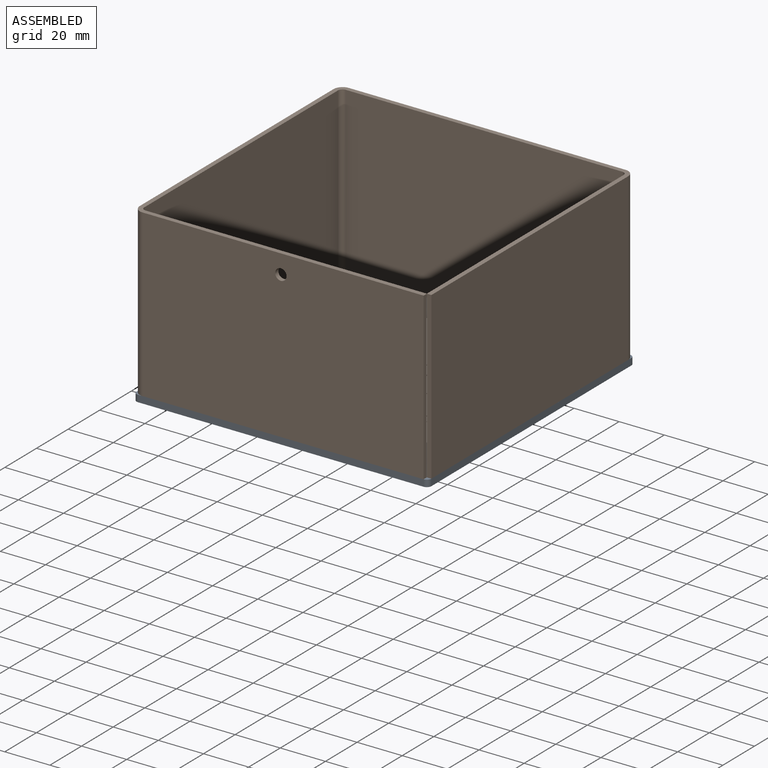
[diagram: assembled view]
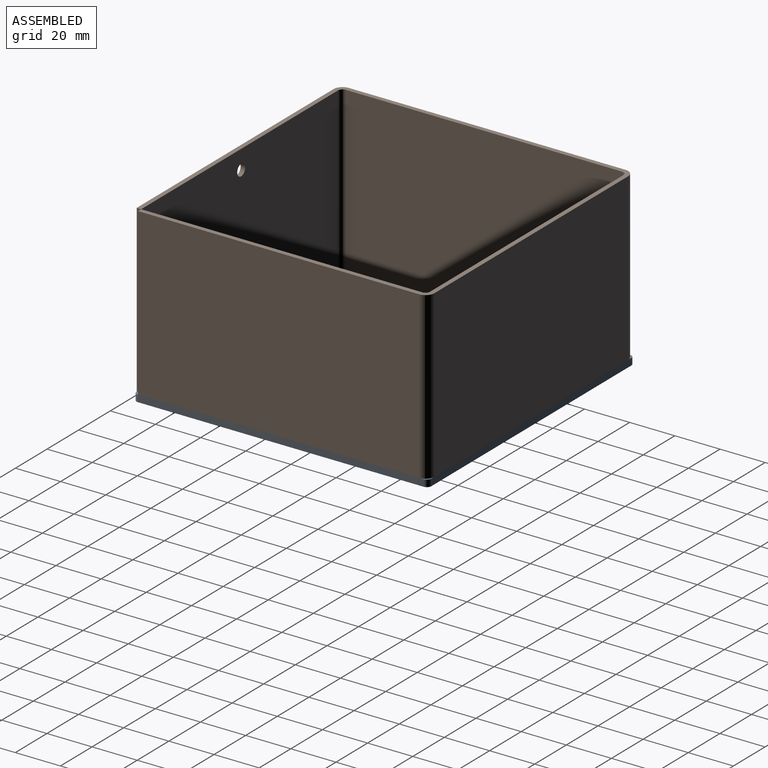
[diagram: assembled view, second angle]
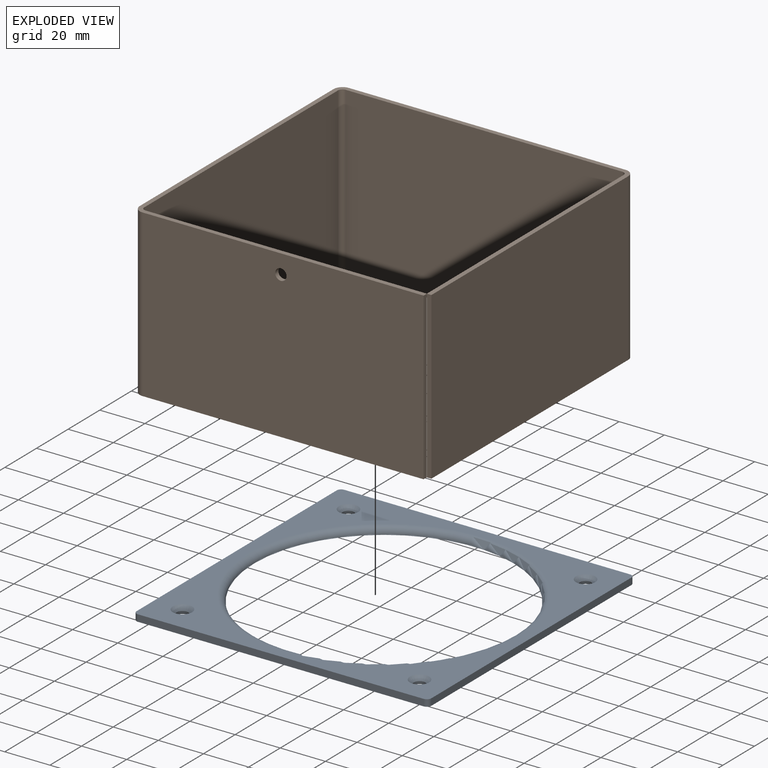
[diagram: exploded view]
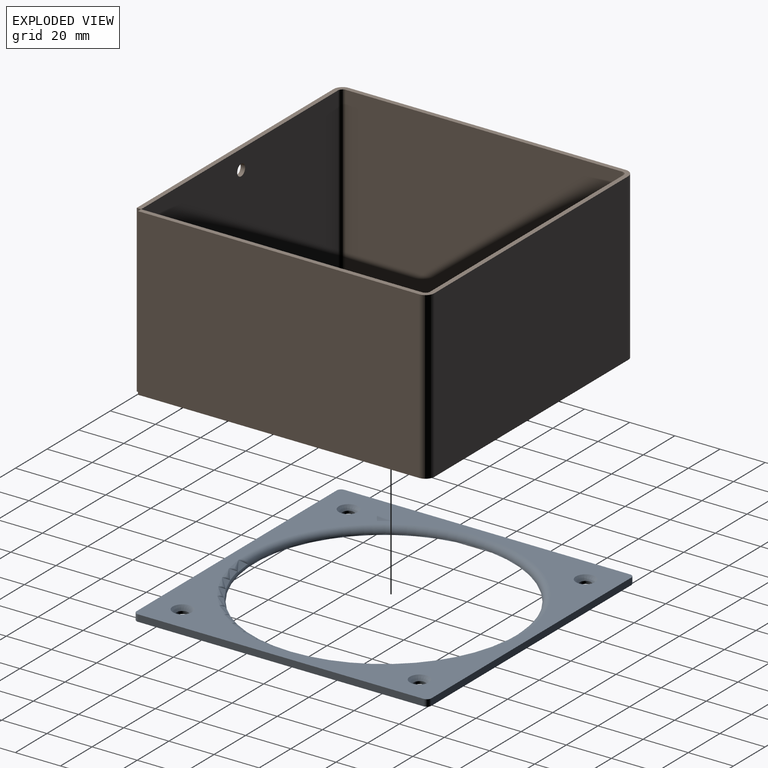
[diagram: exploded view, second angle]
ASSEMBLY  parts=2 mates=3
PART A: 19 faces, bbox 131x131x5.1 mm
  f0: plane 126.5x3mm, normal (0,-1,0), area 379.5mm2, adj f4,f5,f6,f9
  f1: plane 126.5x3mm, normal (1,0,0), area 379.5mm2, adj f4,f5,f6,f7
  f2: plane 126.5x3mm, normal (0,1,0), area 379.5mm2, adj f4,f5,f7,f8
  f3: plane 126.5x3mm, normal (-1,0,0), area 379.5mm2, adj f4,f5,f8,f9
  f4: plane 130.5x130.5mm, normal (0,0,1), area 5295.4mm2, adj f0,f1,f2,f3,f6,f7,f8,f9
  f5: plane 130.5x130.5mm, normal (0,0,-1), area 6561.4mm2, adj f0,f1,f2,f3,f6,f7,f8,f9
  f6: cylinder r=2mm len=3mm, axis (0,0,1), area 9.4mm2, adj f0,f1,f4,f5
  f7: cylinder r=2mm len=3mm, axis (0,0,-1), area 9.4mm2, adj f1,f2,f4,f5
  f8: cylinder r=2mm len=3mm, axis (0,0,1), area 9.4mm2, adj f2,f3,f4,f5
  f9: cylinder r=2mm len=3mm, axis (0,0,-1), area 9.4mm2, adj f0,f3,f4,f5
  f10: cylinder r=2.5mm len=5mm, axis (0,0,1), area 18.8mm2, adj f5,f17
  f11: cylinder r=2.5mm len=5mm, axis (0,0,1), area 18.8mm2, adj f5,f16
  f12: cylinder r=2.5mm len=5mm, axis (0,0,1), area 18.8mm2, adj f5,f14
  f13: cylinder r=2.5mm len=5mm, axis (0,0,1), area 18.8mm2, adj f5,f15
  f14: cone r=2.5mm half-angle=45deg, axis (0,0,1), area 54.4mm2, adj f4,f12
  f15: cone r=2.5mm half-angle=45deg, axis (0,0,1), area 54.4mm2, adj f4,f13
  f16: cone r=2.5mm half-angle=45deg, axis (0,0,1), area 54.4mm2, adj f4,f11
  f17: cone r=2.5mm half-angle=45deg, axis (0,0,1), area 54.4mm2, adj f4,f10
  f18: torus R=60.5mm, axis (0,0,1), area 1734.8mm2, adj f4,f5
PART B: 31 faces, bbox 130.5x130.5x73.5 mm
  f0: plane 122.5x2mm, normal (0,0,-1), area 245mm2, adj f2,f3,f10,f28
  f1: plane 122.5x2mm, normal (0,0,1), area 245mm2, adj f2,f3,f9,f27
  f2: plane 122.5x73.5mm, normal (0,1,0), area 9003.7mm2, adj f0,f1,f11,f29
  f3: plane 122.5x73.5mm, normal (0,-1,0), area 9003.7mm2, adj f0,f1,f12,f30
  f4: plane 124.48x2mm, normal (0,0,-1), area 249mm2, adj f6,f7,f8,f10
  f5: plane 124.48x2mm, normal (0,0,1), area 249mm2, adj f6,f7,f8,f9
  f6: plane 73.5x2mm, normal (0,-1,0), area 147mm2, adj f4,f5,f7,f8
  f7: plane 124.48x73.5mm, normal (1,0,0), area 9149.3mm2, adj f4,f5,f6,f11
  f8: plane 124.48x73.5mm, normal (-1,0,0), area 9149.3mm2, adj f4,f5,f6,f12
  f9: plane 4x4mm, normal (0,0,1), area 9.4mm2, adj f1,f5,f11,f12
  f10: plane 4x4mm, normal (0,0,-1), area 9.4mm2, adj f0,f4,f11,f12
  f11: cylinder r=4mm len=73.5mm, axis (0,0,1), area 461.8mm2, adj f2,f7,f9,f10
  f12: cylinder r=2mm len=73.5mm, axis (0,0,1), area 230.9mm2, adj f3,f8,f9,f10
  f13: plane 122.5x2mm, normal (0,0,-1), area 245mm2, adj f15,f16,f24,f28
  f14: plane 122.5x2mm, normal (0,0,1), area 245mm2, adj f15,f16,f23,f27
  f15: plane 122.5x73.5mm, normal (-1,0,0), area 9003.7mm2, adj f13,f14,f25,f29
  f16: plane 122.5x73.5mm, normal (1,0,0), area 9003.7mm2, adj f13,f14,f26,f30
  f17: plane 73.5x2mm, normal (1,0,0), area 147mm2, adj f18,f20,f21,f22
  f18: plane 124.48x2mm, normal (0,0,1), area 249mm2, adj f17,f21,f22,f23
  f19: cylinder r=2.5mm len=5mm, axis (0,-1,0), area 31.4mm2, adj f21,f22
  f20: plane 124.48x2mm, normal (0,0,-1), area 249mm2, adj f17,f21,f22,f24
  f21: plane 124.48x73.5mm, normal (0,-1,0), area 9129.6mm2, adj f17,f18,f19,f20,f25
  f22: plane 124.48x73.5mm, normal (0,1,0), area 9129.6mm2, adj f17,f18,f19,f20,f26
  f23: plane 4x4mm, normal (0,0,1), area 9.4mm2, adj f14,f18,f25,f26
  f24: plane 4x4mm, normal (0,0,-1), area 9.4mm2, adj f13,f20,f25,f26
  f25: cylinder r=4mm len=73.5mm, axis (0,0,1), area 461.8mm2, adj f15,f21,f23,f24
  f26: cylinder r=2mm len=73.5mm, axis (0,0,1), area 230.9mm2, adj f16,f22,f23,f24
  f27: plane 4x4mm, normal (0,0,1), area 9.4mm2, adj f1,f14,f29,f30
  f28: plane 4x4mm, normal (0,0,-1), area 9.4mm2, adj f0,f13,f29,f30
  f29: cylinder r=4mm len=73.5mm, axis (0,0,1), area 461.8mm2, adj f2,f15,f27,f28
  f30: cylinder r=2mm len=73.5mm, axis (0,0,1), area 230.9mm2, adj f3,f16,f27,f28
PLACE A t=(2.58,79.07,-16.1)mm
PLACE B t=(2.58,79.07,-13.1)mm
MATE planar A.f13 <-> B.f13  axis (0,0,1) through (-49.92,26.57,-13.1)mm
MATE planar B.f15 <-> A.f3  axis (-1,0,0) through (-62.67,17.82,23.65)mm
MATE planar B.f21 <-> A.f0  axis (0,-1,0) through (3.57,13.82,23.59)mm
